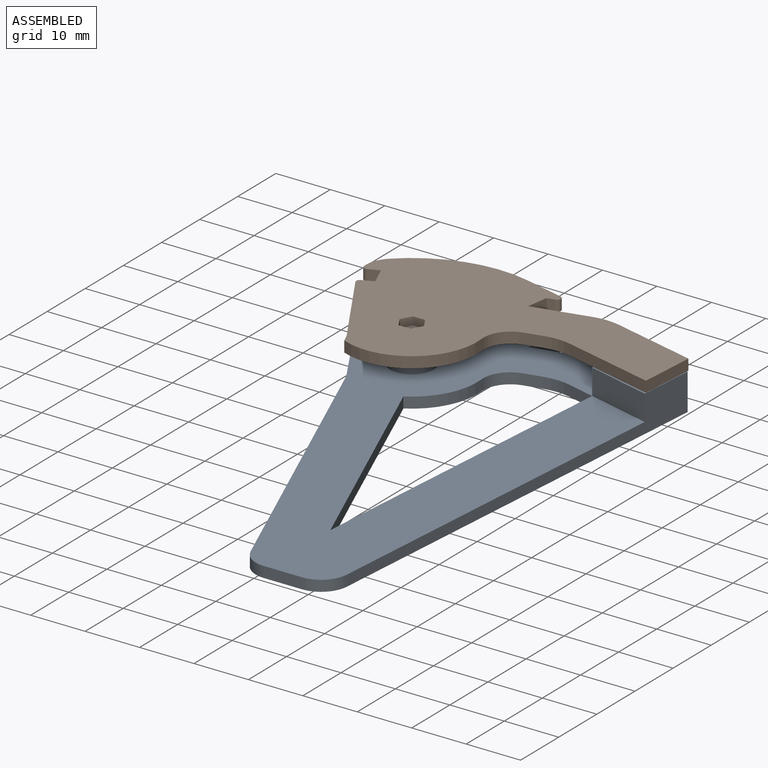
[diagram: assembled view]
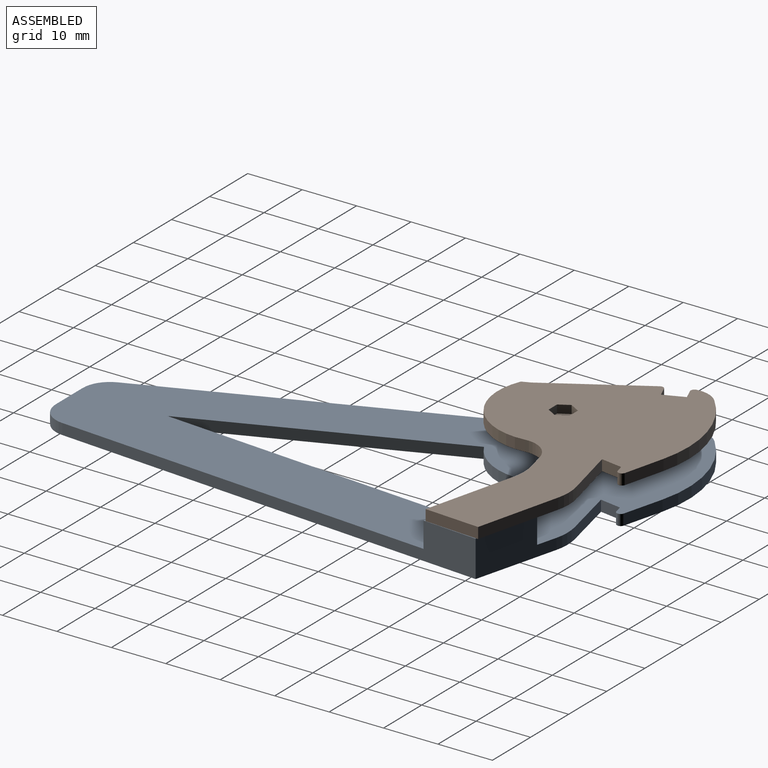
[diagram: assembled view, second angle]
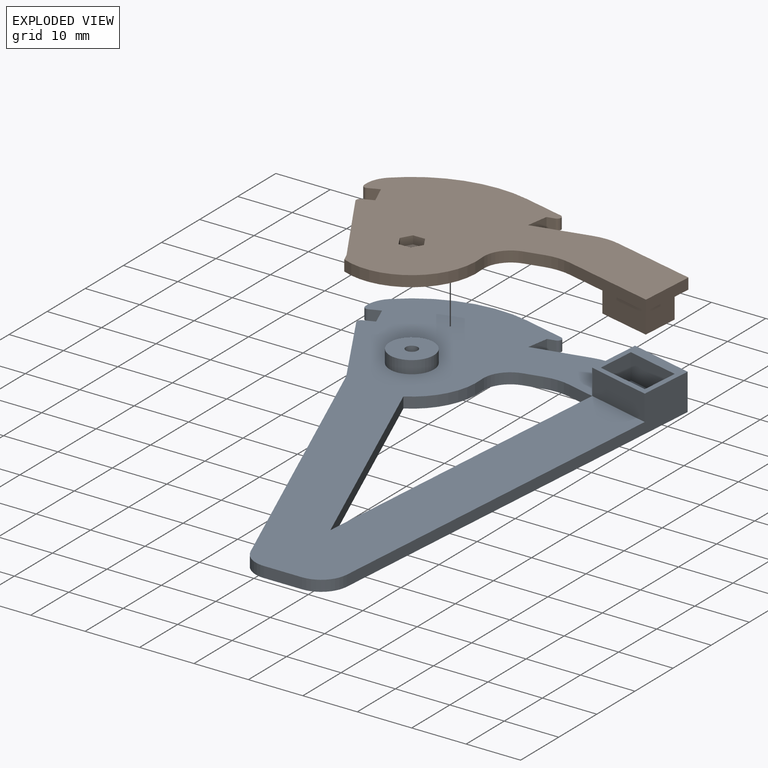
[diagram: exploded view]
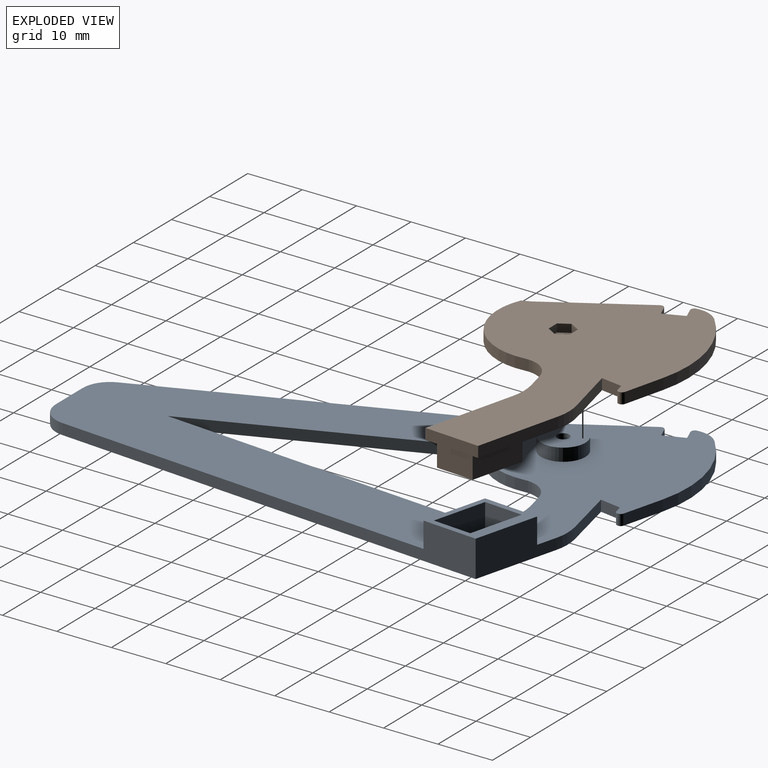
[diagram: exploded view, second angle]
ASSEMBLY  parts=2 mates=2
PART A: 40 faces, bbox 58.9x95x6.7 mm
  f0: plane 59.32x23.97mm, normal (-0.93,-0.37,0), area 128mm2, adj f12,f13,f14,f31
  f1: plane 7.01x2mm, normal (0,-1,0), area 14mm2, adj f13,f14,f31,f32
  f2: plane 80.39x6.7mm, normal (1,-0.08,0), area 209mm2, adj f3,f13,f14,f21,f26,f32
  f3: plane 15.49x6.7mm, normal (0.25,0.97,0), area 89.3mm2, adj f2,f13,f14,f20,f26,f34
  f4: plane 10.21x2.36mm, normal (-0.23,0.97,0), area 21mm2, adj f5,f13,f14,f34
  f5: plane 3.95x2mm, normal (0.99,-0.16,0), area 8mm2, adj f4,f6,f13,f14
  f6: plane 2x1.42mm, normal (0.23,-0.97,0), area 2.9mm2, adj f5,f13,f14,f37
  f7: plane 7.44x2mm, normal (0.25,0.97,0), area 15.4mm2, adj f8,f13,f14,f37
  f8: cylinder r=23mm len=21.56mm, axis (0,0,1), area 46.5mm2, adj f7,f13,f14,f36
  f9: plane 2.02x2mm, normal (0.37,-0.93,0), area 4.3mm2, adj f10,f13,f14,f38
  f10: plane 3.71x2mm, normal (-0.93,-0.37,0), area 8mm2, adj f9,f11,f13,f14
  f11: plane 2.03x2mm, normal (-0.37,0.93,0), area 4.4mm2, adj f10,f13,f14,f39
  f12: plane 16.72x9.86mm, normal (-0.86,-0.51,0), area 38.8mm2, adj f0,f13,f14,f39
  f13: plane 95x58.94mm, normal (0,0,-1), area 2566.2mm2, adj f0,f1,f2,f3,f4,f5,f6,f7
  f14: plane 95x58.14mm, normal (0,0,1), area 2396.6mm2, adj f0,f1,f2,f3,f4,f5,f6,f7
  f15: plane 5.12x2mm, normal (-0.25,-0.97,0), area 10.6mm2, adj f13,f14,f19,f33
  f16: plane 3.3x2mm, normal (0.23,-0.97,0), area 6.8mm2, adj f13,f14,f33,f35
  f17: cylinder r=12mm len=11.69mm, axis (0,0,1), area 28mm2, adj f13,f14,f18,f35
  f18: plane 45.3x18.3mm, normal (0.93,0.37,0), area 97.7mm2, adj f13,f14,f17,f19
  f19: plane 61.73x4.87mm, normal (-1,0.08,0), area 123.8mm2, adj f13,f14,f15,f18
  f20: plane 10.12x4.7mm, normal (-1,0.08,0), area 47.7mm2, adj f3,f14,f21,f26
  f21: plane 11.8x4.7mm, normal (-0.25,-0.97,0), area 57.3mm2, adj f2,f14,f20,f26
  f22: plane 7.09x4.7mm, normal (-1,0.08,0), area 33.4mm2, adj f23,f25,f26,f27
  f23: plane 9.83x4.7mm, normal (0.25,0.97,0), area 47.7mm2, adj f22,f24,f26,f27
  f24: plane 7.09x4.7mm, normal (1,-0.08,0), area 33.4mm2, adj f23,f25,f26,f27
  f25: plane 9.83x4.7mm, normal (-0.25,-0.97,0), area 47.7mm2, adj f22,f24,f26,f27
  f26: plane 13.18x12.59mm, normal (0,0,1), area 50.8mm2, adj f2,f3,f20,f21,f22,f23,f24,f25
  f27: plane 10.39x9.63mm, normal (0,0,1), area 71.1mm2, adj f22,f23,f24,f25
  f28: cylinder r=4.05mm len=8.1mm, axis (0,0,-1), area 59.8mm2, adj f14,f29
  f29: plane 8.1x8.1mm, normal (0,0,1), area 47.7mm2, adj f28,f30
  f30: cylinder r=1.1mm len=4.35mm, axis (0,0,1), area 30.1mm2, adj f13,f29
  f31: cylinder r=5mm len=4.64mm, axis (0,0,1), area 11.9mm2, adj f0,f1,f13,f14
  f32: cylinder r=5mm len=4.98mm, axis (0,0,1), area 14.9mm2, adj f1,f2,f13,f14
  f33: cylinder r=10mm len=4.76mm, axis (0,0,-1), area 9.6mm2, adj f13,f14,f15,f16
  f34: cylinder r=10mm len=4.76mm, axis (0,0,1), area 9.6mm2, adj f3,f4,f13,f14
  f35: cylinder r=5mm len=5.37mm, axis (0,0,1), area 14.4mm2, adj f13,f14,f16,f17
  f36: cylinder r=5mm len=4.27mm, axis (0,0,-1), area 9.4mm2, adj f8,f13,f14,f38
  f37: cylinder r=0.7mm len=2mm, axis (0,0,-1), area 3.7mm2, adj f6,f7,f13,f14
  f38: cylinder r=0.7mm len=2mm, axis (0,0,-1), area 2.6mm2, adj f9,f13,f14,f36
  f39: cylinder r=0.7mm len=2mm, axis (0,0,-1), area 2.4mm2, adj f11,f12,f13,f14
PART B: 44 faces, bbox 58.9x35x6.6 mm
  f0: plane 58.94x35mm, normal (0,0,-1), area 1055.7mm2, adj f4,f5,f6,f7,f8,f9,f10,f11
  f1: cylinder r=1.1mm len=2.85mm, axis (0,0,-1), area 19.7mm2, adj f3,f30
  f2: cylinder r=4.05mm len=8.1mm, axis (0,0,-1), area 59.8mm2, adj f3,f16
  f3: plane 8.1x8.1mm, normal (0,0,1), area 47.7mm2, adj f1,f2
  f4: plane 2x1.46mm, normal (0.93,-0.37,0), area 3.1mm2, adj f0,f5,f16,f17
  f5: plane 16.72x9.86mm, normal (0.86,-0.51,0), area 38.8mm2, adj f0,f4,f16,f41
  f6: plane 2.03x2mm, normal (0.37,0.93,0), area 4.4mm2, adj f0,f7,f16,f41
  f7: plane 3.71x2mm, normal (0.93,-0.37,0), area 8mm2, adj f0,f6,f8,f16
  f8: plane 2.02x2mm, normal (-0.37,-0.93,0), area 4.3mm2, adj f0,f7,f16,f42
  f9: cylinder r=23mm len=21.56mm, axis (0,0,1), area 46.5mm2, adj f0,f10,f16,f40
  f10: plane 7.44x2mm, normal (-0.25,0.97,0), area 15.4mm2, adj f0,f9,f16,f43
  f11: plane 2x1.42mm, normal (-0.23,-0.97,0), area 2.9mm2, adj f0,f12,f16,f43
  f12: plane 3.95x2mm, normal (-0.99,-0.16,0), area 8mm2, adj f0,f11,f13,f16
  f13: plane 10.21x2.36mm, normal (0.23,0.97,0), area 21mm2, adj f0,f12,f16,f38
  f14: plane 15.49x4.01mm, normal (-0.25,0.97,0), area 32mm2, adj f0,f15,f16,f38
  f15: plane 10.12x2mm, normal (-1,-0.08,0), area 20.3mm2, adj f0,f14,f16,f19
  f16: plane 58.94x35mm, normal (0,0,1), area 949.2mm2, adj f2,f4,f5,f6,f7,f8,f9,f10
  f17: cylinder r=12mm len=16.77mm, axis (0,0,1), area 49.9mm2, adj f0,f4,f16,f39
  f18: plane 3.3x2mm, normal (-0.23,-0.97,0), area 6.8mm2, adj f0,f16,f37,f39
  f19: plane 16.92x4.38mm, normal (0.25,-0.97,0), area 35mm2, adj f0,f15,f16,f37
  f20: plane 9.63x4.6mm, normal (0.25,-0.97,0), area 45.8mm2, adj f16,f21,f27,f28
  f21: plane 6.88x4.6mm, normal (1,0.08,0), area 31.8mm2, adj f16,f20,f22,f28
  f22: plane 9.63x4.6mm, normal (-0.25,0.97,0), area 45.8mm2, adj f16,f21,f27,f28
  f23: plane 4.86x4.6mm, normal (1,0.08,0), area 22.4mm2, adj f24,f26,f28,f29
  f24: plane 7.67x4.6mm, normal (0.25,-0.97,0), area 36.4mm2, adj f23,f25,f28,f29
  f25: plane 4.86x4.6mm, normal (-1,-0.08,0), area 22.4mm2, adj f24,f26,f28,f29
  f26: plane 7.67x4.6mm, normal (-0.25,0.97,0), area 36.4mm2, adj f23,f25,f28,f29
  f27: plane 6.88x4.6mm, normal (-1,-0.08,0), area 31.8mm2, adj f16,f20,f22,f28
  f28: plane 10.18x9.38mm, normal (0,0,1), area 29.7mm2, adj f20,f21,f22,f23,f24,f25,f26,f27
  f29: plane 8.05x6.84mm, normal (0,0,1), area 38mm2, adj f23,f24,f25,f26
  f30: plane 4.42x3.83mm, normal (0,0,-1), area 8.9mm2, adj f1,f31,f32,f33,f34,f35,f36
  f31: plane 1.92x1.5mm, normal (-0.87,-0.5,0), area 3.3mm2, adj f0,f30,f32,f36
  f32: plane 1.92x1.5mm, normal (-0.87,0.5,0), area 3.3mm2, adj f0,f30,f31,f33
  f33: plane 2.21x1.5mm, normal (0,1,0), area 3.3mm2, adj f0,f30,f32,f34
  f34: plane 1.92x1.5mm, normal (0.87,0.5,0), area 3.3mm2, adj f0,f30,f33,f35
  f35: plane 1.92x1.5mm, normal (0.87,-0.5,0), area 3.3mm2, adj f0,f30,f34,f36
  f36: plane 2.21x1.5mm, normal (0,-1,0), area 3.3mm2, adj f0,f30,f31,f35
  f37: cylinder r=10mm len=4.76mm, axis (0,0,-1), area 9.6mm2, adj f0,f16,f18,f19
  f38: cylinder r=10mm len=4.76mm, axis (0,0,1), area 9.6mm2, adj f0,f13,f14,f16
  f39: cylinder r=5mm len=5.37mm, axis (0,0,1), area 14.4mm2, adj f0,f16,f17,f18
  f40: cylinder r=5mm len=4.27mm, axis (0,0,-1), area 9.4mm2, adj f0,f9,f16,f42
  f41: cylinder r=0.7mm len=2mm, axis (0,0,-1), area 2.4mm2, adj f0,f5,f6,f16
  f42: cylinder r=0.7mm len=2mm, axis (0,0,-1), area 2.6mm2, adj f0,f8,f16,f40
  f43: cylinder r=0.7mm len=2mm, axis (0,0,-1), area 3.7mm2, adj f0,f10,f11,f16
PLACE A at identity fixed
PLACE B rot(axis=(0,-1,0),180deg) t=(100,0.9,4.7)mm
MATE cylindrical B.f9 <-> A.f8  axis (0,0,-1) through (0,0,4.7)mm
MATE planar B.f17 <-> A.f28  axis (0,0,-1) through (0,0,2.35)mm
